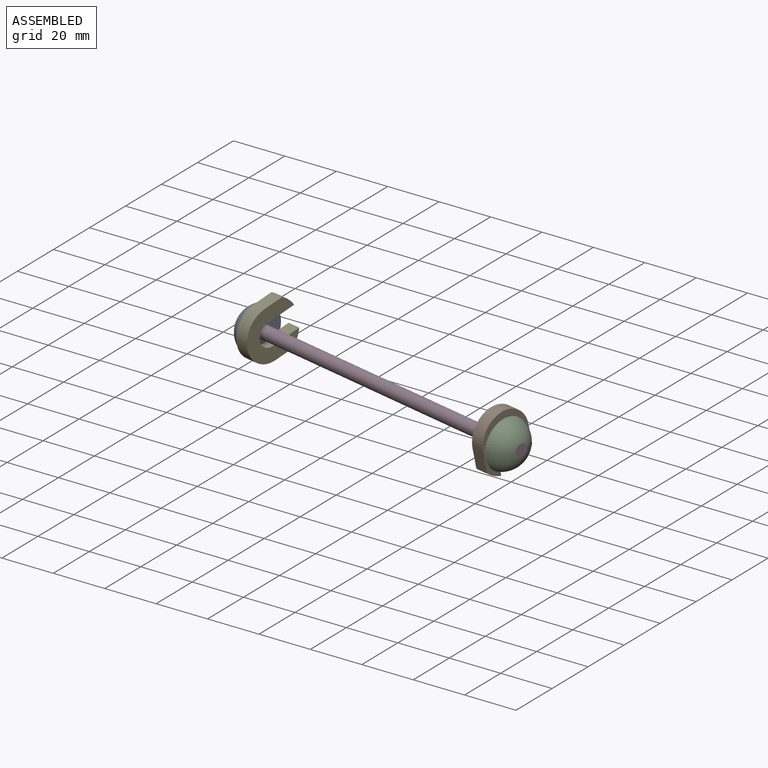
[diagram: assembled view]
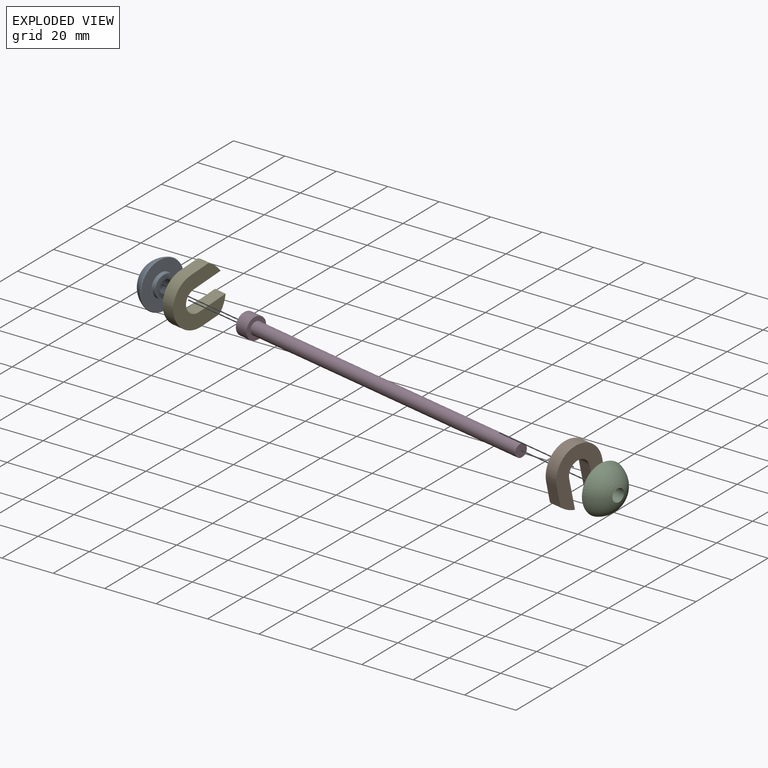
[diagram: exploded view]
GUIDED TOUR — MATED ASSEMBLY (Onshape document a83fd58e2df7c23d53c824e6, AutoMate assembly a83fd58e2df7c23d53c824e6_dad2b7290c4bdfee2455b681_fe5db33fa95fd376d060a364_default)

This assembly has 5 components, labeled P0..P4 below (a component is one placed occurrence of a part; the same part can appear more than once), held together by 8 mates. A mate is a constraint between two components; its type names the relative motion it leaves free:
  CYLINDRICAL — leaves both rotation about and translation along the listed axis free,
  FASTENED — locks the two components together rigidly (no relative motion),
  PLANAR — leaves sliding in the plane through the listed point (normal = the listed direction) and rotation about that normal free.
Axis/direction vectors are unit vectors and 'through' points are millimeter coordinates, both in the assembly's world frame.

MATES
  1. PLANAR "Planar 3": P1 <-> P2, direction (0.976, -0.217, 0.000) through (95.83, 11.55, -28.33) mm
  2. PLANAR "Planar 2": P3 <-> P2, direction (0.976, -0.217, 0.000) through (104.42, 19.33, -24.56) mm
  3. PLANAR "Planar 4": P2 <-> P1, direction (0.212, 0.954, 0.210) through (97.96, 26.09, -27.54) mm
  4. FASTENED "Fastened 1": P3 <-> P0, direction (0.976, -0.217, 0.000) through (-17.60, 46.47, -24.56) mm
  5. PLANAR "Planar 1": P4 <-> P0, direction (-0.976, 0.217, 0.000) through (-18.24, 36.67, -26.97) mm
  6. CYLINDRICAL "Cylindrical 1": P4 <-> P3, axis (-0.976, 0.217, 0.000) through (-11.26, 45.06, -24.56) mm
  7. FASTENED "Fastened 3": P0 <-> P3, direction (-0.976, 0.217, 0.000) through (-17.60, 46.47, -24.56) mm
  8. CYLINDRICAL "Cylindrical 3": P3 <-> P2, axis (0.976, -0.217, 0.000) through (43.41, 32.90, -24.56) mm

ASSEMBLY ORDER
  1. P3 — the base component [order heuristic]
  2. P0 [order heuristic]
  3. P2 [order heuristic]
  4. P4 [order heuristic]
  5. P1 [order heuristic]
Order-tag legend:
  [order heuristic] — this assembly is geometrically interlocked (no collision-free removal order exists), so components are listed in mate-graph order; insertion feasibility is not verified.

Of the 5 components, 3 carry the full construction recipe — the FeatureScript program that regenerates the part's solid from scratch; the rest are supplied as boundary geometry only.
Each toured component is shown spotlighted twice — in the assembled view, then in the exploded view, where a leader line traces a displaced component back to its assembled socket (saturated green if recipe-attached, orange if geometry-only; every other component desaturated gray) — followed by its recipe or geometry summary and the mates that hold it.
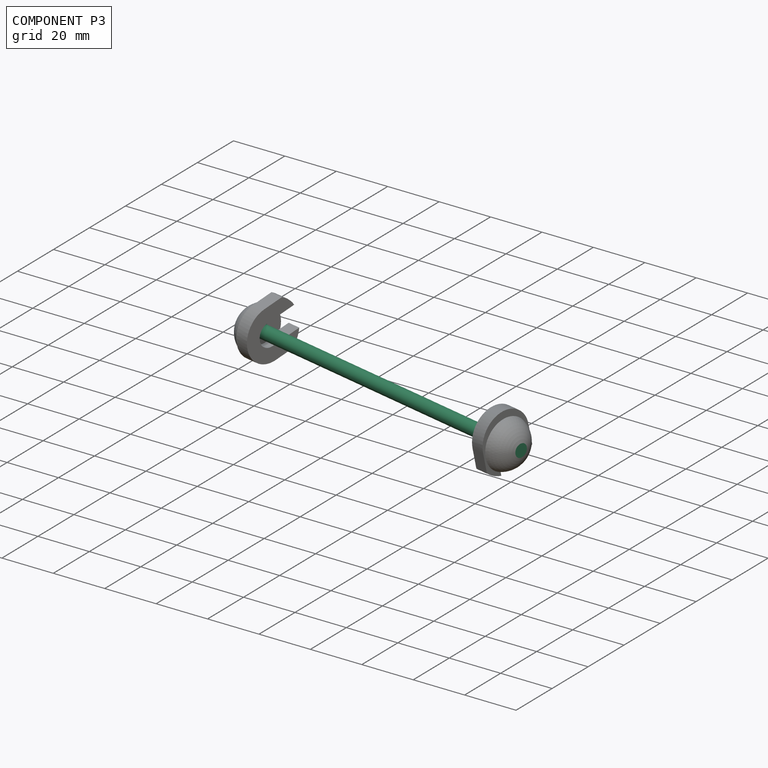
[diagram: component P3 — assembled]
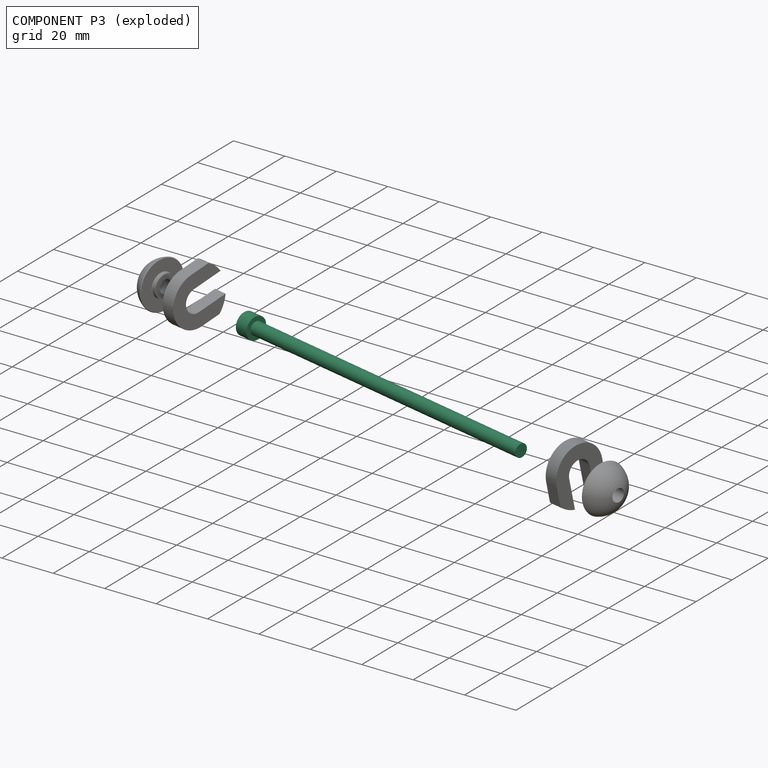
[diagram: component P3 — exploded]
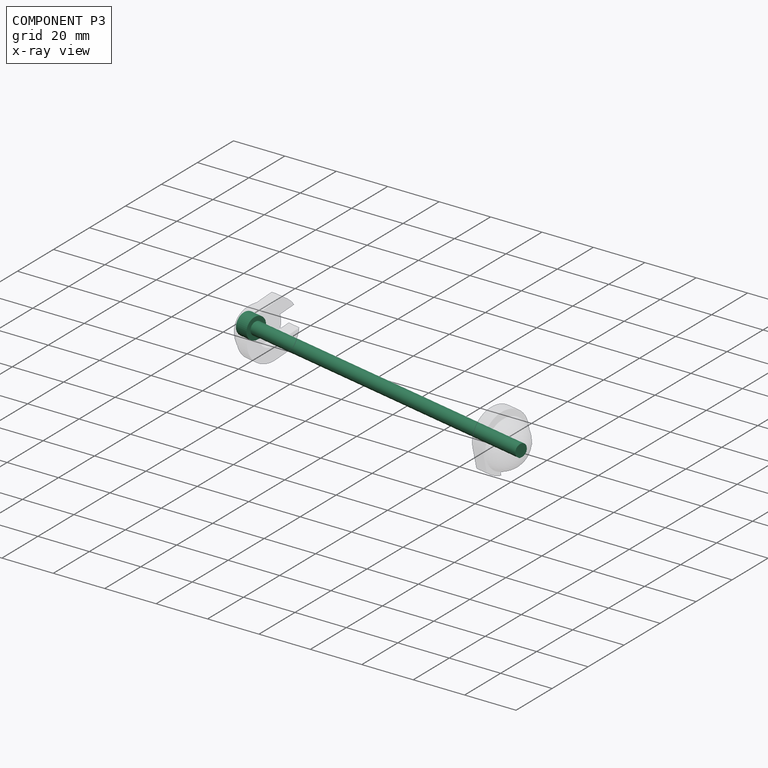
[diagram: component P3 — x-ray view]
COMPONENT P3 — recipe-attached (CADFS 00233534, mesh-verified: the recipe's output STEP matches this component's geometry to below the mesh-comparison resolution (tessellation chordal tolerance ~0.196 mm)).
Held by: PLANAR mate "Planar 2" to P2; FASTENED mate "Fastened 1" to P0; CYLINDRICAL mate "Cylindrical 1" to P4; FASTENED mate "Fastened 3" to P0; CYLINDRICAL mate "Cylindrical 3" to P2.
Construction recipe (FeatureScript — the CAD program that rebuilds this solid; sketch coordinates are in the units given by the * unit suffixes, e.g. mm):

FeatureScript 1511;
import(path : "onshape/std/geometry.fs", version : "1511.0");
import(path : "onshape/std/common.fs", version : "1511.0");
const mm = millimeter;
const VERTEX = EntityType.VERTEX;
const EDGE = EntityType.EDGE;
const FACE = EntityType.FACE;
const BODY = EntityType.BODY;
function v(x, y){return vector(x, y);}
function OD(order){return orderDisambiguation(order);}
function OSD(set){return originalSetDisambiguation(set);}
function TD(topology){return topologyDisambiguation(topology);}
function TDD(query){return trueDependencyDisambiguation(query);}
function sQuery(a, b, c) {return sketchEntityQuery(a, b, c);}

annotation { "Feature Type Name" : "Feature", "Feature Type Description" : "" }
export const myFeature = defineFeature(function(context is Context, id is Id, definition is map)
    precondition{}
    {
        {
            var Q0;
            Q0=qCreatedBy(makeId("Top.planeOp"),FACE);
            var sketch = newSketch(context, id + "F0", { "sketchPlane" : qUnion([Q0])});
            skLineSegment(sketch, "E0", {"start": v(0, 0) * mm, "end": v(0, 4.25) * mm});
            skLineSegment(sketch, "E1", {"start": v(5, 2.5) * mm, "end": v(130, 2.5) * mm});
            skLineSegment(sketch, "E2", {"start": v(130, 2.5) * mm, "end": v(130, 0) * mm});
            skLineSegment(sketch, "E3", {"start": v(130, 0) * mm, "end": v(0, 0) * mm});
            skLineSegment(sketch, "E4", {"start": v(0, 4.25) * mm, "end": v(5, 4.25) * mm});
            skLineSegment(sketch, "E5", {"start": v(5, 4.25) * mm, "end": v(5, 2.5) * mm});
            skSolve(sketch);
        }
        {
            var Q0;
            Q0=makeQuery(id+"F0.imprint","IMPRINT",FACE,{"disambiguationData":[TD([[makeQuery(id+"F0.imprint","IMPRINT",EDGE,{"derivedFrom":sQuery(id+"F0.wireOp",EDGE,"E0")}),-1.0]])]});
            var Q1;
            Q1=sQuery(id+"F0.wireOp",EDGE,"E3");
            revolve(context, id + "F1", {"surfaceOperationType" : NewSurfaceOperationType.NEW, "entities" : qUnion([Q0]), "axis" : qUnion([Q1]), "revolveType" : RevolveType.FULL});
        }
        {
            var Q0;
            Q0=makeQuery(id+"F1.opRevolve","SWEPT_FACE",FACE,{"disambiguationData":[OSD([sQuery(id+"F0.wireOp",EDGE,"E0")])]});
            var sketch = newSketch(context, id + "F2", { "sketchPlane" : qUnion([Q0])});
            skLineSegment(sketch, "E6", {"start": v(-1.15, 2) * mm, "end": v(1.15, 2) * mm});
            skLineSegment(sketch, "E7", {"start": v(1.15, 2) * mm, "end": v(2.3, 0) * mm});
            skLineSegment(sketch, "E8", {"start": v(2.3, 0) * mm, "end": v(1.15, -2) * mm});
            skLineSegment(sketch, "E9", {"start": v(-1.15, 2) * mm, "end": v(-2.3, 0) * mm});
            skLineSegment(sketch, "E10", {"start": v(-2.3, 0) * mm, "end": v(-1.15, -2) * mm});
            skLineSegment(sketch, "E11", {"start": v(-1.15, -2) * mm, "end": v(1.15, -2) * mm});
            skSolve(sketch);
        }
        {
            var Q0;
            Q0 = qSketchRegion(id + "F2", true);
            extrude(context, id + "F3", {"entities" : qUnion([Q0]), "operationType" : NewBodyOperationType.REMOVE, "oppositeDirection" : true, "depth" : 2 * mm, "offsetDistance" : 25 * mm});
        }
    });
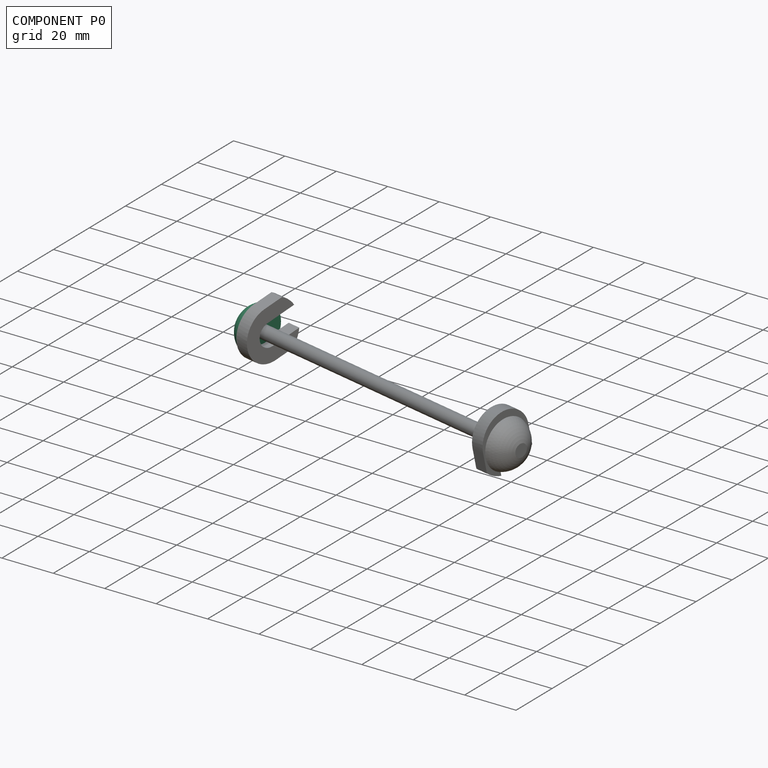
[diagram: component P0 — assembled]
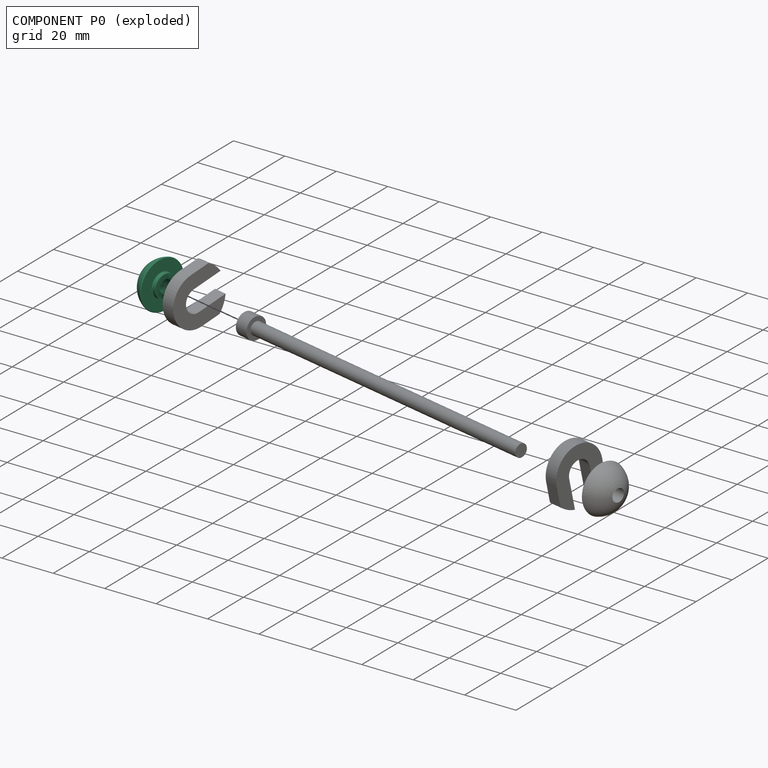
[diagram: component P0 — exploded]
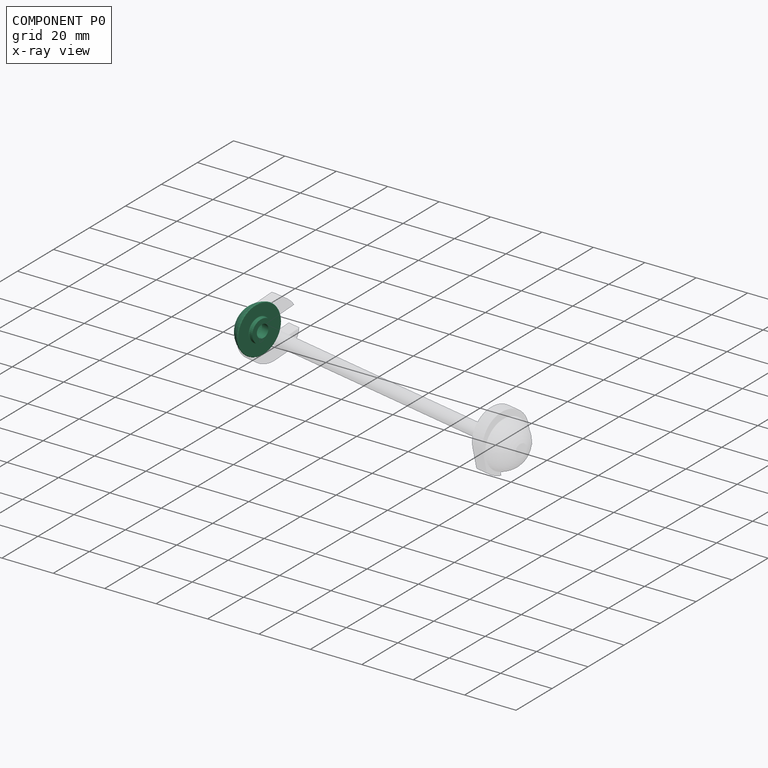
[diagram: component P0 — x-ray view]
COMPONENT P0 — recipe-attached (CADFS 00233536, mesh-verified: the recipe's output STEP matches this component's geometry to below the mesh-comparison resolution (tessellation chordal tolerance ~0.0416 mm)).
Held by: FASTENED mate "Fastened 1" to P3; PLANAR mate "Planar 1" to P4; FASTENED mate "Fastened 3" to P3.
Construction recipe (FeatureScript — the CAD program that rebuilds this solid; sketch coordinates are in the units given by the * unit suffixes, e.g. mm):

FeatureScript 1511;
import(path : "onshape/std/geometry.fs", version : "1511.0");
import(path : "onshape/std/common.fs", version : "1511.0");
const mm = millimeter;
const VERTEX = EntityType.VERTEX;
const EDGE = EntityType.EDGE;
const FACE = EntityType.FACE;
const BODY = EntityType.BODY;
function v(x, y){return vector(x, y);}
function OD(order){return orderDisambiguation(order);}
function OSD(set){return originalSetDisambiguation(set);}
function TD(topology){return topologyDisambiguation(topology);}
function TDD(query){return trueDependencyDisambiguation(query);}
function sQuery(a, b, c) {return sketchEntityQuery(a, b, c);}

annotation { "Feature Type Name" : "Feature", "Feature Type Description" : "" }
export const myFeature = defineFeature(function(context is Context, id is Id, definition is map)
    precondition{}
    {
        {
            var Q0;
            Q0=qCreatedBy(makeId("Top.planeOp"),FACE);
            var sketch = newSketch(context, id + "F0", { "sketchPlane" : qUnion([Q0])});
            skLineSegment(sketch, "E0", {"start": v(-82.6, 0) * mm, "end": v(124.14, 0) * mm, "construction": true});
            skLineSegment(sketch, "E1", {"start": v(124.14, 2.5) * mm, "end": v(8.84, 2.5) * mm, "construction": true});
            skLineSegment(sketch, "E2", {"start": v(7.34, 4.45) * mm, "end": v(7.34, 9.5) * mm});
            skLineSegment(sketch, "E3", {"start": v(7.34, 9.5) * mm, "end": v(18.24, 12.34) * mm, "construction": true});
            skLineSegment(sketch, "E4", {"start": v(0, 0) * mm, "end": v(0, -9.73) * mm, "construction": true});
            skArc(sketch, "E5", {"start": v(1.04, 4.4) * mm, "mid": v(3.64, 7.63) * mm, "end": v(7.34, 9.5) * mm});
            skLineSegment(sketch, "E6", {"start": v(7.34, 4.45) * mm, "end": v(8.84, 4.45) * mm});
            skLineSegment(sketch, "E7", {"start": v(8.84, 4.45) * mm, "end": v(8.84, 2.5) * mm});
            skPoint(sketch, "E8.orphan", {"position": v(7.34, 2.5) * mm});
            skLineSegment(sketch, "E9", {"start": v(0, 0) * mm, "end": v(124.14, 0) * mm});
            skLineSegment(sketch, "E10", {"start": v(1.04, 4.4) * mm, "end": v(1.04, 0) * mm, "construction": true});
            skLineSegment(sketch, "E11", {"start": v(5.84, 2.5) * mm, "end": v(8.84, 2.5) * mm});
            skLineSegment(sketch, "E12", {"start": v(1.04, 4.4) * mm, "end": v(5.84, 4.4) * mm});
            skLineSegment(sketch, "E13", {"start": v(5.84, 4.4) * mm, "end": v(5.84, 2.5) * mm});
            skSolve(sketch);
        }
        {
            var Q0;
            Q0=qSketchRegion(id+"F0",true);
            var Q1;
            Q1=sQuery(id+"F0.wireOp",EDGE,"E0");
            revolve(context, id + "F1", {"entities" : qUnion([Q0]), "axis" : qUnion([Q1]), "revolveType" : RevolveType.FULL});
        }
        {
            var Q0;
            Q0=makeQuery(id+"F1.opRevolve","SWEPT_EDGE",EDGE,{"disambiguationData":[OSD([sQuery(id+"F0.wireOp",EDGE,"E2"),sQuery(id+"F0.wireOp",EDGE,"E5")])]});
            var Q1;
            Q1=makeQuery(id+"F1.opRevolve","SWEPT_EDGE",EDGE,{"disambiguationData":[OSD([sQuery(id+"F0.wireOp",EDGE,"E2"),sQuery(id+"F0.wireOp",EDGE,"E6")])]});
            var Q2;
            Q2=makeQuery(id+"F1.opRevolve","SWEPT_EDGE",EDGE,{"disambiguationData":[OSD([sQuery(id+"F0.wireOp",EDGE,"E5"),sQuery(id+"F0.wireOp",EDGE,"E12")])]});
            fillet(context, id + "F2", {"entities" : qUnion([Q0, Q1, Q2]), "radius" : 0.25 * mm, "tangentPropagation" : true, "allowEdgeOverflow" : false});
        }
    });
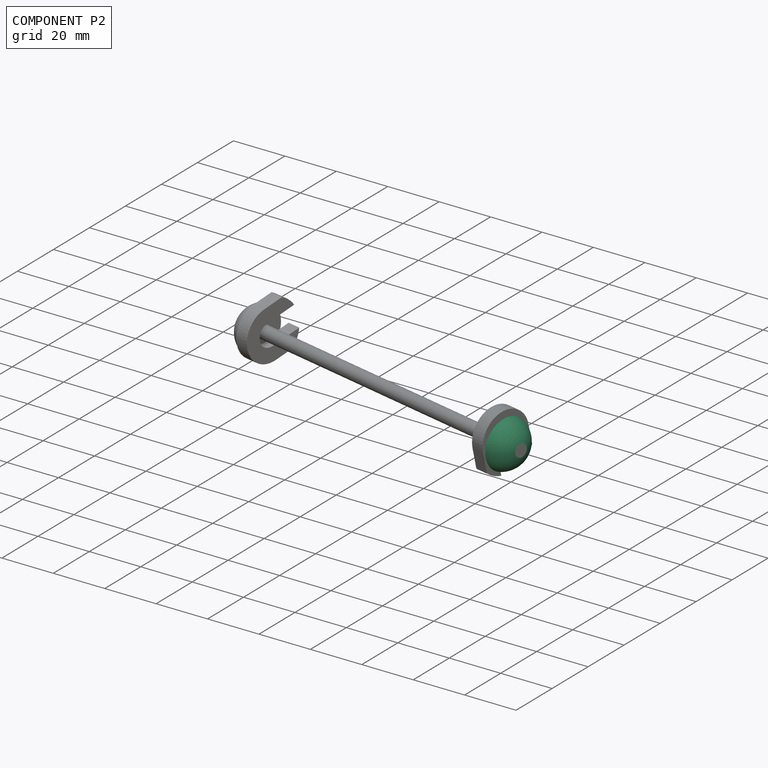
[diagram: component P2 — assembled]
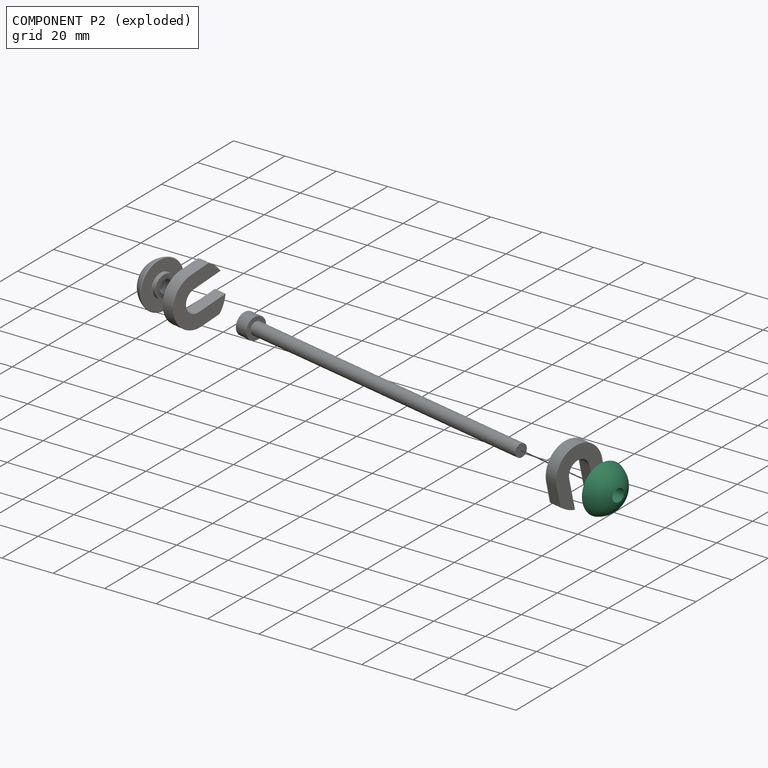
[diagram: component P2 — exploded]
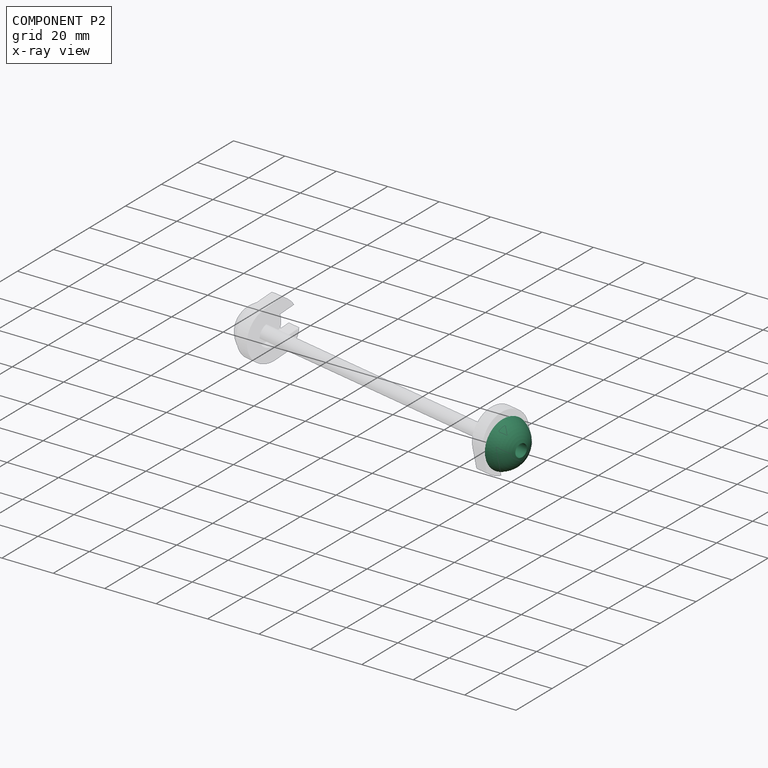
[diagram: component P2 — x-ray view]
COMPONENT P2 — recipe-attached (CADFS 00233538, mesh-verified: the recipe's output STEP matches this component's geometry to below the mesh-comparison resolution (tessellation chordal tolerance ~0.042 mm)).
Held by: PLANAR mate "Planar 3" to P1; PLANAR mate "Planar 2" to P3; PLANAR mate "Planar 4" to P1; CYLINDRICAL mate "Cylindrical 3" to P3.
Construction recipe (FeatureScript — the CAD program that rebuilds this solid; sketch coordinates are in the units given by the * unit suffixes, e.g. mm):

FeatureScript 1511;
import(path : "onshape/std/geometry.fs", version : "1511.0");
import(path : "onshape/std/common.fs", version : "1511.0");
const mm = millimeter;
const VERTEX = EntityType.VERTEX;
const EDGE = EntityType.EDGE;
const FACE = EntityType.FACE;
const BODY = EntityType.BODY;
function v(x, y){return vector(x, y);}
function OD(order){return orderDisambiguation(order);}
function OSD(set){return originalSetDisambiguation(set);}
function TD(topology){return topologyDisambiguation(topology);}
function TDD(query){return trueDependencyDisambiguation(query);}
function sQuery(a, b, c) {return sketchEntityQuery(a, b, c);}

annotation { "Feature Type Name" : "Feature", "Feature Type Description" : "" }
export const myFeature = defineFeature(function(context is Context, id is Id, definition is map)
    precondition{}
    {
        {
            var Q0;
            Q0=qCreatedBy(makeId("Front.planeOp"),FACE);
            var sketch = newSketch(context, id + "F0", { "sketchPlane" : qUnion([Q0])});
            skLineSegment(sketch, "E0", {"start": v(0, 4.45) * mm, "end": v(0, 9.5) * mm, "construction": true});
            skLineSegment(sketch, "E1", {"start": v(0, 0) * mm, "end": v(0, 9.5) * mm});
            skLineSegment(sketch, "E2", {"start": v(-7.34, 0) * mm, "end": v(-7.34, -20.68) * mm, "construction": true});
            skLineSegment(sketch, "E3", {"start": v(0, 9.5) * mm, "end": v(18.63, 14.35) * mm, "construction": true});
            skArc(sketch, "E4", {"start": v(0, 9.5) * mm, "mid": v(-5.3, 6) * mm, "end": v(-7.34, 0) * mm});
            skLineSegment(sketch, "E5", {"start": v(0, 4.45) * mm, "end": v(4, 4.45) * mm});
            skLineSegment(sketch, "E6", {"start": v(4, 4.45) * mm, "end": v(4, 0) * mm});
            skLineSegment(sketch, "E7", {"start": v(4, 0) * mm, "end": v(-7.34, 0) * mm});
            skLineSegment(sketch, "E8", {"start": v(-6.3, 0) * mm, "end": v(-6.3, 4.4) * mm, "construction": true});
            skSolve(sketch);
        }
        {
            var Q0;
            Q0 = qSketchRegion(id + "F0", true);
            var Q1;
            Q1=sQuery(id+"F0.wireOp",EDGE,"E7");
            revolve(context, id + "F1", {"entities" : qUnion([Q0]), "axis" : qUnion([Q1]), "revolveType" : RevolveType.FULL});
        }
        {
            var Q0;
            Q0=makeQuery(id+"F4.boolean.opBoolean","SPLIT",EDGE,{"derivedFrom":makeQuery(id+"F1.opRevolve","SWEPT_EDGE",EDGE,{"disambiguationData":[OSD([sQuery(id+"F0.wireOp",EDGE,"E1"),sQuery(id+"F0.wireOp",EDGE,"E4")])]})});
            fillet(context, id + "F2", {"entities" : qUnion([Q0]), "radius" : 0.25 * mm, "tangentPropagation" : true, "allowEdgeOverflow" : false});
        }
        {
            var Q0;
            Q0=qCreatedBy(makeId("Right.planeOp"),FACE);
            var sketch = newSketch(context, id + "F3", { "sketchPlane" : qUnion([Q0])});
            skArc(sketch, "E9.0", {"start": v(-4.45, 0) * mm, "mid": v(0, -4.45) * mm, "end": v(4.45, 0) * mm});
            skArc(sketch, "E10.0", {"start": v(-4.45, -8.02) * mm, "mid": v(0, -9.17) * mm, "end": v(4.45, -8.02) * mm});
            skLineSegment(sketch, "E11", {"start": v(-4.45, 0) * mm, "end": v(-4.45, -8.02) * mm});
            skLineSegment(sketch, "E12", {"start": v(4.45, 0) * mm, "end": v(4.45, -8.02) * mm});
            skSolve(sketch);
        }
        {
            var Q0;
            Q0 = qSketchRegion(id + "F3", true);
            var Q1;
            Q1=makeQuery(id+"F1.opRevolve","SWEPT_FACE",FACE,{"disambiguationData":[OSD([sQuery(id+"F0.wireOp",EDGE,"E6")])]});
            extrude(context, id + "F4", {"entities" : qUnion([Q0]), "operationType" : NewBodyOperationType.ADD, "endBound" : BoundingType.UP_TO_SURFACE, "endBoundEntityFace" : qUnion([Q1]), "depth" : 25 * mm});
        }
        {
            var Q0;
            Q0=qCreatedBy(makeId("Right.planeOp"),FACE);
            var sketch = newSketch(context, id + "F5", { "sketchPlane" : qUnion([Q0])});
            skCircle(sketch, "E13", {"center": v(0, 0) * mm, "radius": 2.5 * mm});
            skSolve(sketch);
        }
        {
            var Q0;
            Q0 = qSketchRegion(id + "F5", true);
            extrude(context, id + "F6", {"entities" : qUnion([Q0]), "operationType" : NewBodyOperationType.REMOVE, "endBound" : BoundingType.THROUGH_ALL, "oppositeDirection" : true, "depth" : 25 * mm, "hasSecondDirection" : true, "secondDirectionOppositeDirection" : false, "secondDirectionDepth" : 25 * mm});
        }
        {
            var Q0;
            Q0=makeQuery(id+"F4.boolean.opBoolean","MERGE",FACE,{"derivedFrom":[makeQuery(id+"F1.opRevolve","SWEPT_FACE",FACE,{"disambiguationData":[OSD([sQuery(id+"F0.wireOp",EDGE,"E6")])]}),makeQuery(id+"F4.opExtrude","CAP_FACE",FACE,{"disambiguationData":[OSD([sQuery(id+"F3.wireOp",EDGE,"E9.0"),sQuery(id+"F3.wireOp",EDGE,"E10.0"),sQuery(id+"F3.wireOp",EDGE,"E11"),sQuery(id+"F3.wireOp",EDGE,"E12")])],"isStart":false})]});
            cPlane(context, id + "F7", {"entities" : qUnion([Q0]), "cplaneType" : CPlaneType.OFFSET, "offset" : 2.5 * mm, "oppositeDirection" : true, "width" : 150 * mm, "height" : 150 * mm});
        }
        {
            var Q0;
            Q0=qCreatedBy(id+"F7.planeOp",FACE);
            var sketch = newSketch(context, id + "F8", { "sketchPlane" : qUnion([Q0])});
            skArc(sketch, "E14.0", {"start": v(4.45, 0) * mm, "mid": v(0, 4.45) * mm, "end": v(-4.45, 0) * mm});
            skCircle(sketch, "E15", {"center": v(0, 0) * mm, "radius": 4.45 * mm, "construction": true});
            skLineSegment(sketch, "E16", {"start": v(-4.44, -4.45) * mm, "end": v(4.48, -4.45) * mm, "construction": true});
            skLineSegment(sketch, "E17", {"start": v(-4.45, -14.45) * mm, "end": v(4.45, -14.45) * mm});
            skLineSegment(sketch, "E18", {"start": v(-4.45, -14.45) * mm, "end": v(-4.45, 0) * mm});
            skLineSegment(sketch, "E19", {"start": v(4.45, 0) * mm, "end": v(4.45, -14.45) * mm});
            skSolve(sketch);
        }
        {
            var Q0;
            Q0 = qSketchRegion(id + "F8", true);
            extrude(context, id + "F9", {"entities" : qUnion([Q0]), "operationType" : NewBodyOperationType.REMOVE, "depth" : 3 * mm, "offsetDistance" : 25 * mm});
        }
    });
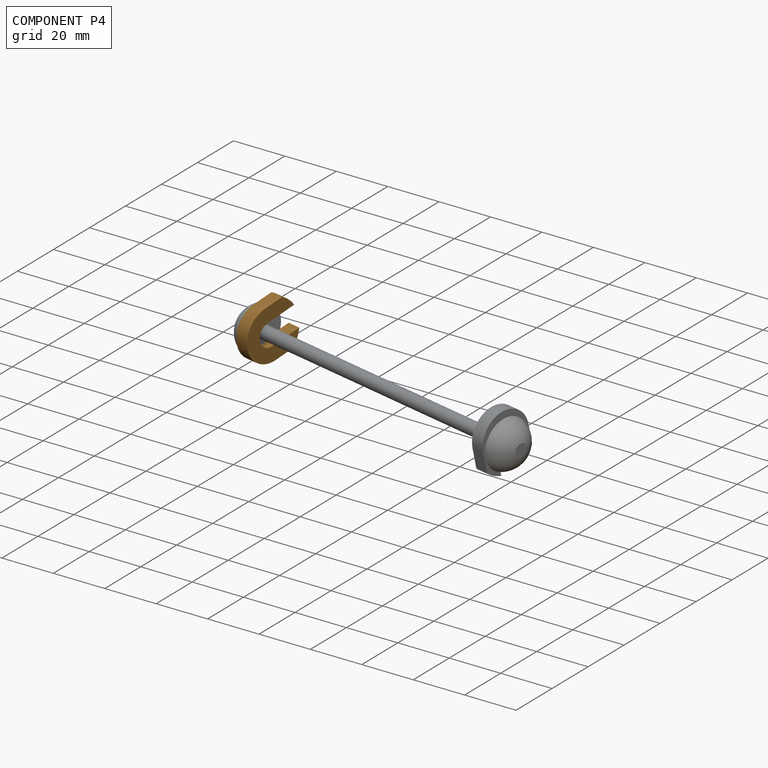
[diagram: component P4 — assembled]
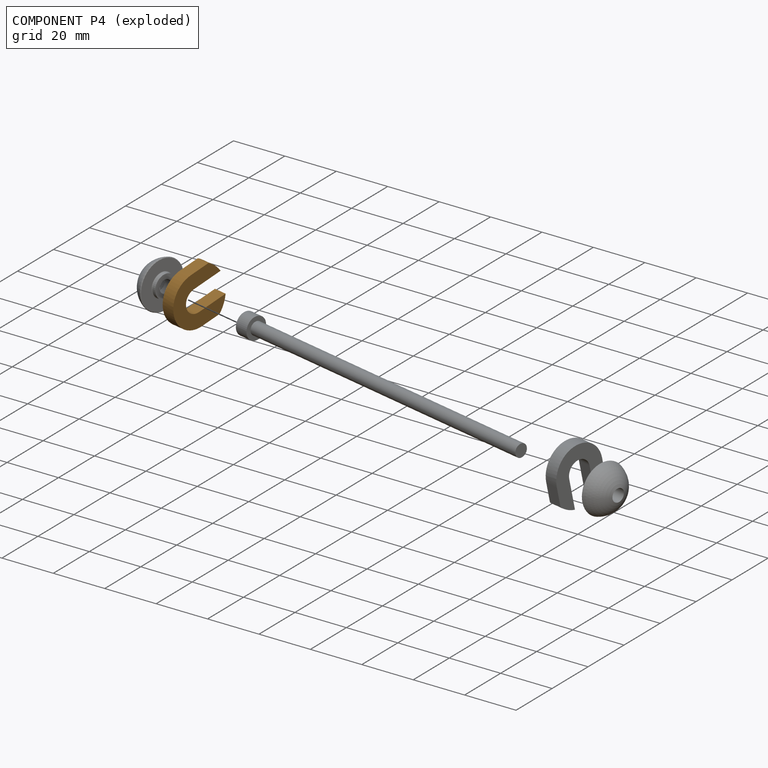
[diagram: component P4 — exploded]
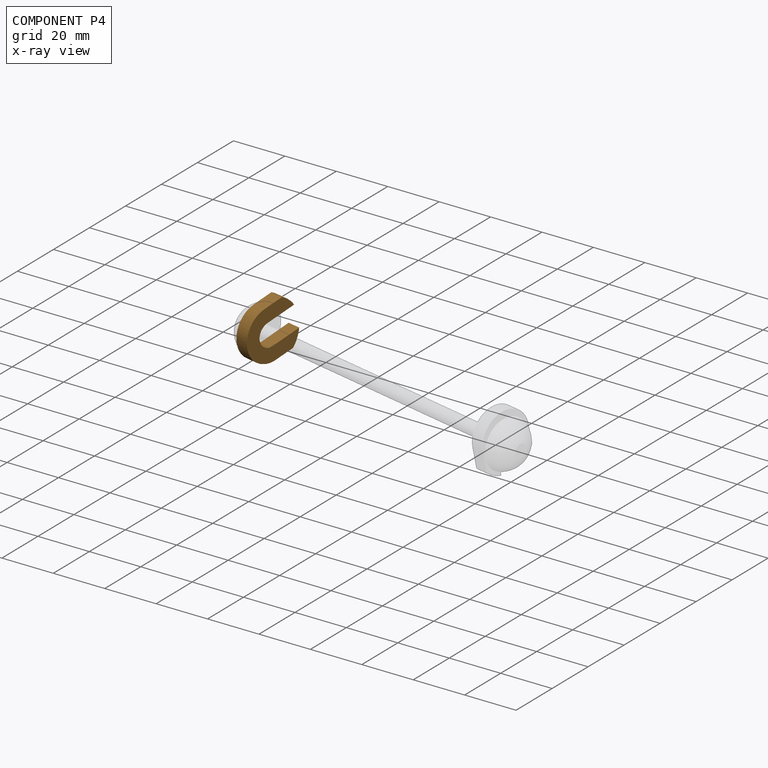
[diagram: component P4 — x-ray view]
COMPONENT P4 — geometry summary (no construction recipe available for this part):
  bounding box: 22.6 x 21.6 x 5.0 mm
  B-rep topology: 1 solid, 10 faces, 48 edges
  volume: 1190 mm^3 (49% of its bounding box)
  symmetry: mirror-symmetric across its y mid-plane
Held by: PLANAR mate "Planar 1" to P0; CYLINDRICAL mate "Cylindrical 1" to P3.
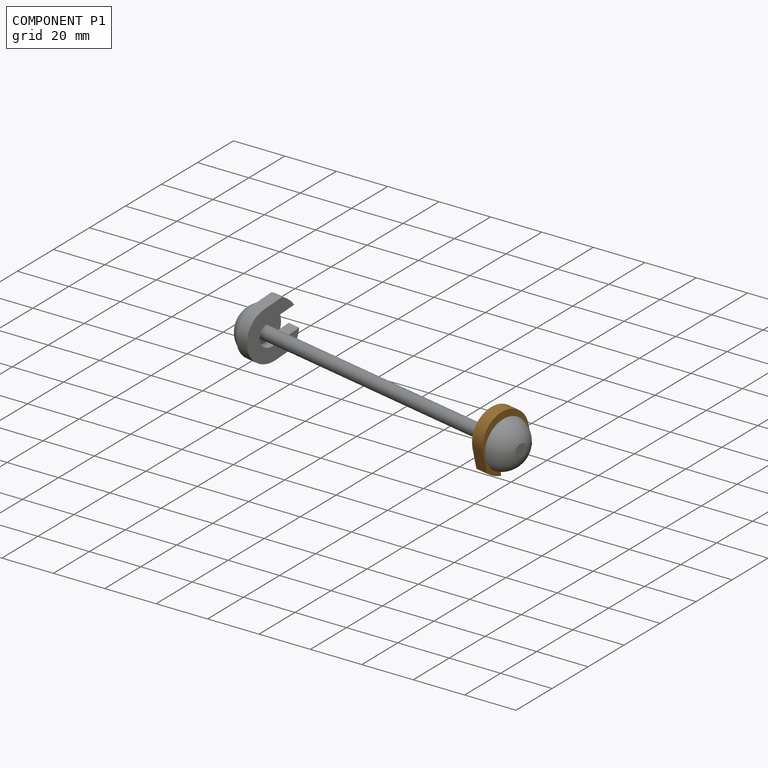
[diagram: component P1 — assembled]
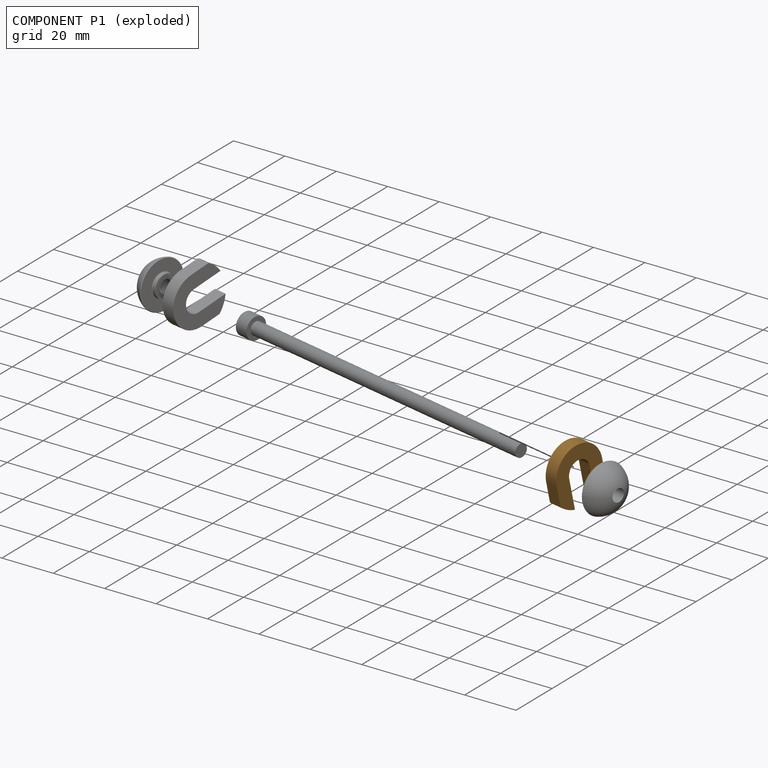
[diagram: component P1 — exploded]
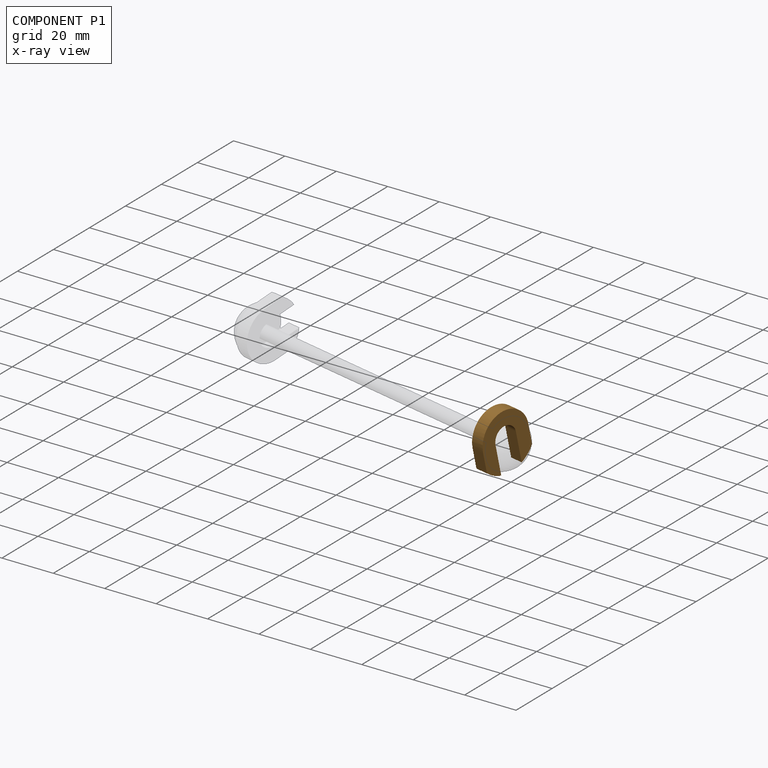
[diagram: component P1 — x-ray view]
COMPONENT P1 — geometry summary (no construction recipe available for this part):
  bounding box: 22.6 x 21.6 x 5.0 mm
  B-rep topology: 1 solid, 10 faces, 48 edges
  volume: 1190 mm^3 (49% of its bounding box)
  symmetry: mirror-symmetric across its y mid-plane
Held by: PLANAR mate "Planar 3" to P2; PLANAR mate "Planar 4" to P2.
PROVENANCE & LICENSES
Assembly (occurrences, transforms, mates, per-part STEP geometry): AutoMate dataset, Zenodo record 7776208, CC0.
Construction recipes: CADFS (HuggingFace VladPyatov/CADFS, CC-BY-4.0, layered over the ABC dataset), FeatureScript reconstruction programs keyed by ABC model id.
Join: ABC meta listings map ABC model id -> Onshape documentId; within a shared document, parts are matched by geometric signature (bounding-box dims + volume at 0.1% relative tolerance, exact B-rep face/solid counts).
Verification: 3 of this assembly's 5 components carry a recipe attachment, and every attachment is mesh-verified: the CADFS STEP and the AutoMate member STEP were compared as meshes in their shared local frame (symmetric sampled-point-to-mesh distance); worst across the 3 attachments: below the mesh-comparison resolution (tessellation chordal tolerance ~0.196 mm) on a 131 mm part.
Renders: orthographic iso camera (az 35 / el 25); the floor grid conveys scale (grid pitch printed in each image; no ruler). In the exploded view each component is displaced by its stored offset vector: the offsets alone carry the explosion direction (mate normal/axis signs are not orientation cues and do not encode it), and separation distances are assigned per mate-chain, not proportionally to assembly-order depth.
